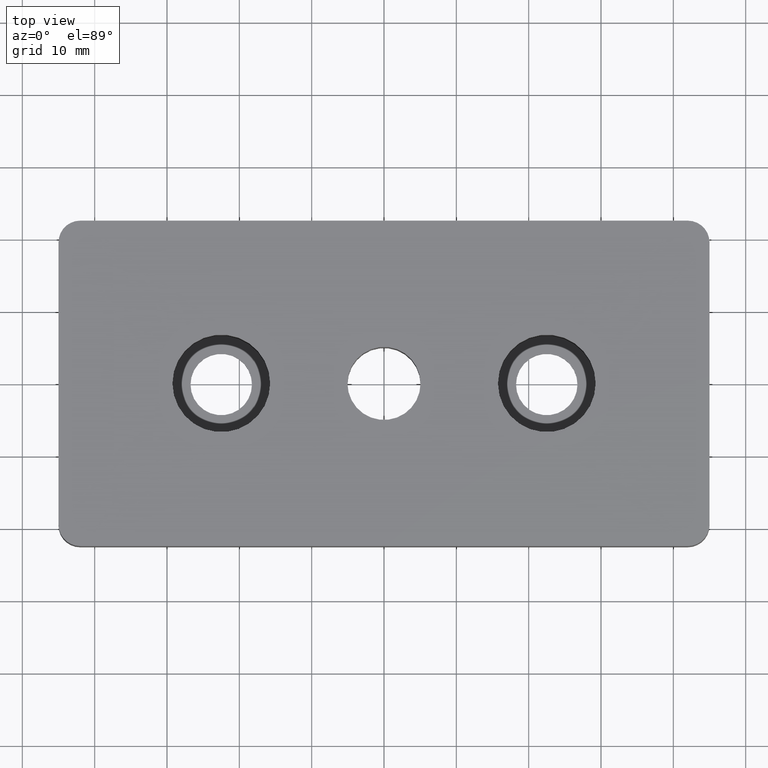
[diagram: clean part render]
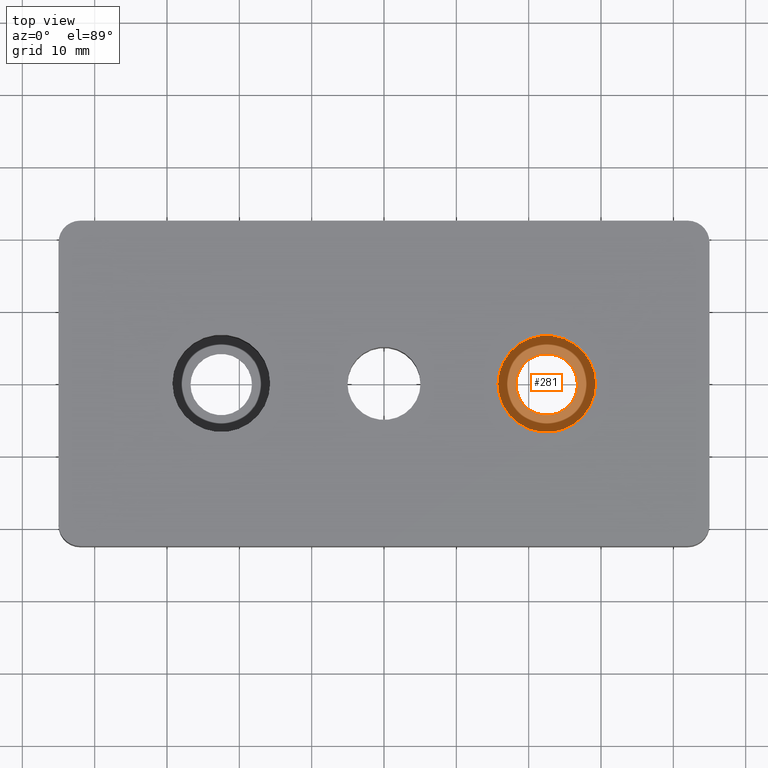
[diagram: same view with one face highlighted and labeled with its STEP entity id]
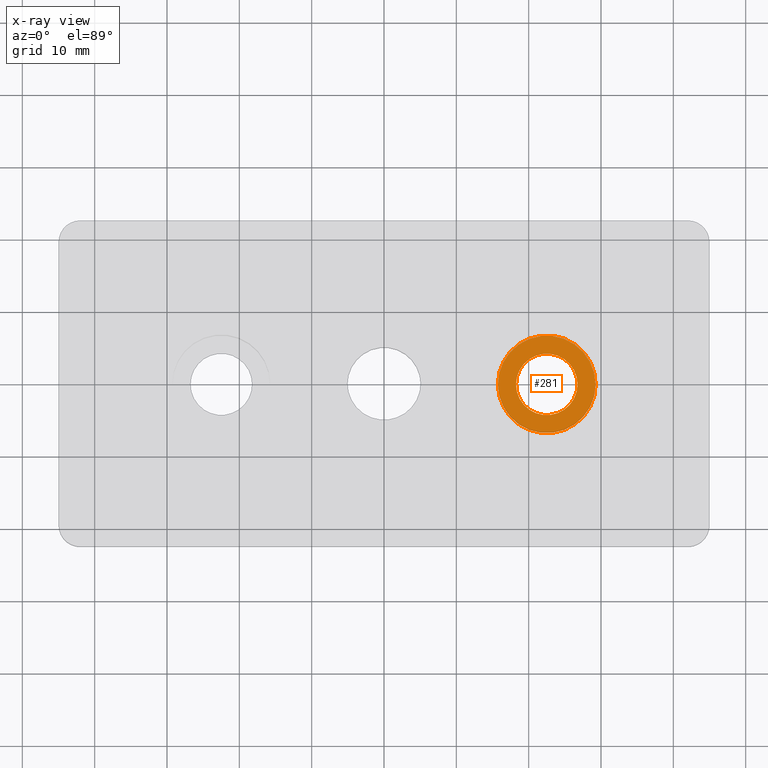
[diagram: x-ray of the same camera — body ghosted, the highlighted face saturated]
A machine part, top view. The second image highlights one B-rep face of the part: STEP entity #281.
The next image is the same camera in x-ray: the body ghosted, the highlighted face saturated — about 0% of this face is hidden behind the body in this view.
In plain terms, the highlighted planar face has unit normal (0, 0, 1).
Its self-contained STEP definition (entity closure, byte-faithful):
#21=FACE_BOUND('',#71,.T.);
#33=PLANE('',#314);
#47=FACE_OUTER_BOUND('',#70,.T.);
#70=EDGE_LOOP('',(#238));
#71=EDGE_LOOP('',(#239));
#129=CIRCLE('',#315,6.75);
#130=CIRCLE('',#316,4.25);
#155=VERTEX_POINT('',#476);
#156=VERTEX_POINT('',#478);
#188=EDGE_CURVE('',#155,#155,#129,.T.);
#189=EDGE_CURVE('',#156,#156,#130,.T.);
#238=ORIENTED_EDGE('',*,*,#188,.T.);
#239=ORIENTED_EDGE('',*,*,#189,.F.);
#281=ADVANCED_FACE('',(#47,#21),#33,.T.);
#314=AXIS2_PLACEMENT_3D('',#475,#391,#392);
#315=AXIS2_PLACEMENT_3D('',#477,#393,#394);
#316=AXIS2_PLACEMENT_3D('',#479,#395,#396);
#391=DIRECTION('center_axis',(0.,0.,1.));
#392=DIRECTION('ref_axis',(1.,0.,0.));
#393=DIRECTION('center_axis',(0.,0.,1.));
#394=DIRECTION('ref_axis',(1.,0.,0.));
#395=DIRECTION('center_axis',(0.,0.,1.));
#396=DIRECTION('ref_axis',(1.,0.,0.));
#475=CARTESIAN_POINT('Origin',(22.5,0.,1.5));
#476=CARTESIAN_POINT('',(29.25,0.,1.5));
#477=CARTESIAN_POINT('Origin',(22.5,0.,1.5));
#478=CARTESIAN_POINT('',(18.25,-5.20474889637625E-16,1.5));
#479=CARTESIAN_POINT('Origin',(22.5,0.,1.5));